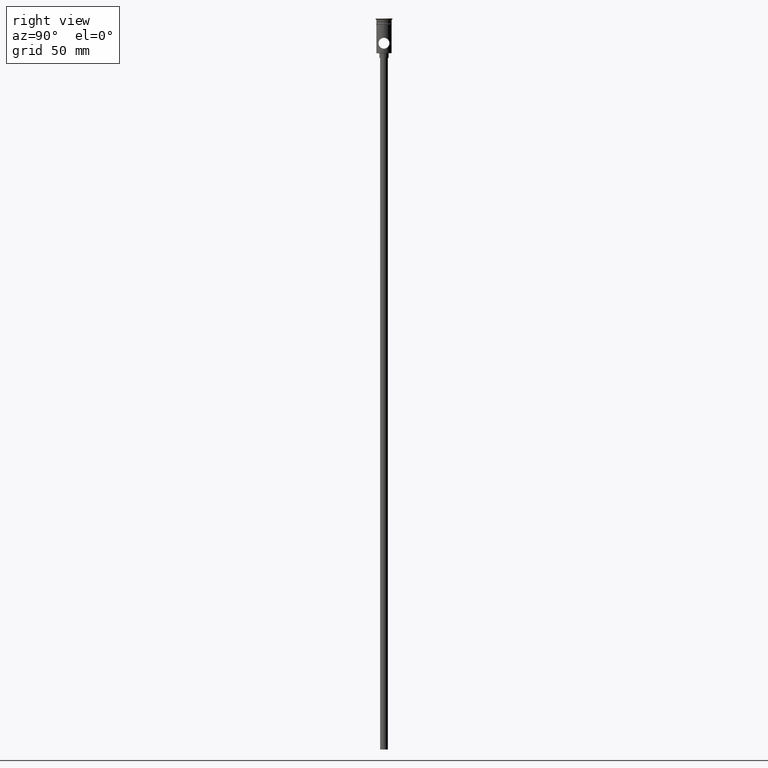
[diagram: clean part render]
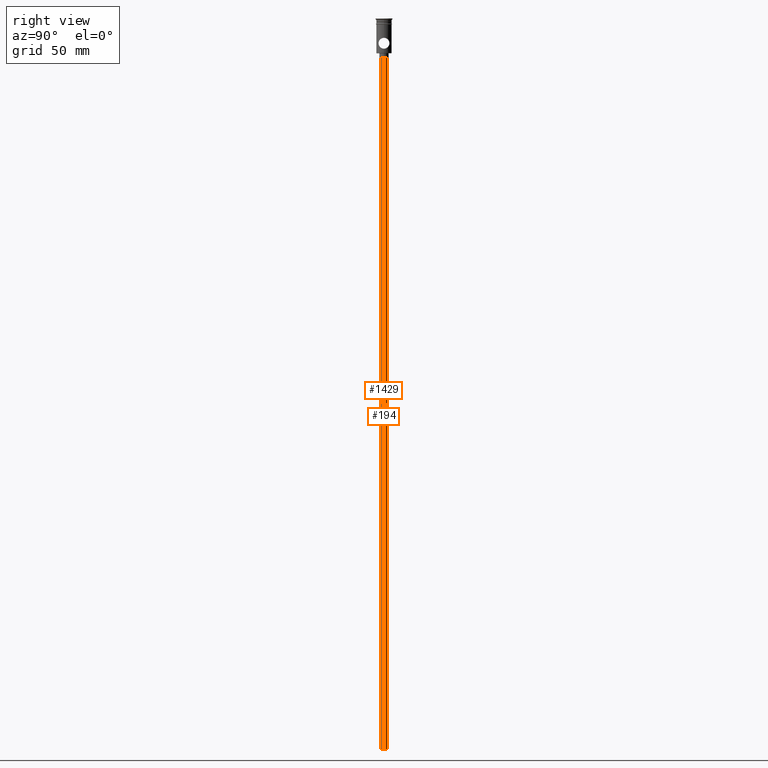
[diagram: same view with one multi-face feature highlighted, each face labeled with its STEP entity id]
A machine part, right view. The highlighted faces form ONE feature: a constant-radius fillet chain: 2 tangent blend faces with common blend radius 2.5 mm. The faces share edges in the B-rep.
Their STEP definitions:
[1] entity #1429 (Cylinder):
#43 = DIRECTION ( 'NONE',  ( -0.000000000000000000, -0.000000000000000000, 1.000000000000000000 ) ) ;
#120 = CARTESIAN_POINT ( 'NONE',  ( 0.000000000000000000, 0.000000000000000000, -25.50000000000000000 ) ) ;
#166 = EDGE_LOOP ( 'NONE', ( #471, #990, #1132, #1093 ) ) ;
#199 = CIRCLE ( 'NONE', #1033, 2.500000000000000000 ) ;
#205 = CARTESIAN_POINT ( 'NONE',  ( 2.500000000000000000, 0.000000000000000000, -472.5000000000000568 ) ) ;
#277 = DIRECTION ( 'NONE',  ( 1.000000000000000000, 0.000000000000000000, 0.000000000000000000 ) ) ;
#300 = CARTESIAN_POINT ( 'NONE',  ( 2.500000000000000000, 0.000000000000000000, -472.5000000000000568 ) ) ;
#331 = DIRECTION ( 'NONE',  ( -1.000000000000000000, 0.000000000000000000, 0.000000000000000000 ) ) ;
#352 = CARTESIAN_POINT ( 'NONE',  ( -2.500000000000000000, 3.061616997868383141E-16, -25.50000000000000000 ) ) ;
#433 = CARTESIAN_POINT ( 'NONE',  ( 2.500000000000000000, 0.000000000000000000, -25.50000000000000000 ) ) ;
#436 = DIRECTION ( 'NONE',  ( -0.000000000000000000, -0.000000000000000000, 1.000000000000000000 ) ) ;
#471 = ORIENTED_EDGE ( 'NONE', *, *, #924, .F. ) ;
#472 = CARTESIAN_POINT ( 'NONE',  ( 0.000000000000000000, 0.000000000000000000, -472.5000000000000568 ) ) ;
#475 = VERTEX_POINT ( 'NONE', #433 ) ;
#477 = DIRECTION ( 'NONE',  ( -1.000000000000000000, 0.000000000000000000, 0.000000000000000000 ) ) ;
#593 = DIRECTION ( 'NONE',  ( 0.000000000000000000, 0.000000000000000000, -1.000000000000000000 ) ) ;
#616 = CARTESIAN_POINT ( 'NONE',  ( -2.500000000000000000, 3.061616997868383141E-16, -472.5000000000000568 ) ) ;
#620 = CARTESIAN_POINT ( 'NONE',  ( 0.000000000000000000, 0.000000000000000000, -472.5000000000000568 ) ) ;
#631 = CARTESIAN_POINT ( 'NONE',  ( -2.500000000000000000, 3.061616997868383141E-16, -472.5000000000000568 ) ) ;
#662 = DIRECTION ( 'NONE',  ( 0.000000000000000000, 0.000000000000000000, -1.000000000000000000 ) ) ;
#726 = EDGE_CURVE ( 'NONE', #475, #1070, #199, .T. ) ;
#736 = AXIS2_PLACEMENT_3D ( 'NONE', #620, #43, #277 ) ;
#744 = CYLINDRICAL_SURFACE ( 'NONE', #736, 2.500000000000000000 ) ;
#780 = CIRCLE ( 'NONE', #833, 2.500000000000000000 ) ;
#809 = EDGE_CURVE ( 'NONE', #1459, #475, #1233, .T. ) ;
#833 = AXIS2_PLACEMENT_3D ( 'NONE', #472, #593, #477 ) ;
#844 = FACE_OUTER_BOUND ( 'NONE', #166, .T. ) ;
#885 = EDGE_CURVE ( 'NONE', #1459, #1318, #780, .T. ) ;
#924 = EDGE_CURVE ( 'NONE', #1318, #1070, #1323, .T. ) ;
#990 = ORIENTED_EDGE ( 'NONE', *, *, #885, .F. ) ;
#1033 = AXIS2_PLACEMENT_3D ( 'NONE', #120, #662, #331 ) ;
#1070 = VERTEX_POINT ( 'NONE', #352 ) ;
#1081 = VECTOR ( 'NONE', #1194, 1000.000000000000000 ) ;
#1093 = ORIENTED_EDGE ( 'NONE', *, *, #726, .T. ) ;
#1132 = ORIENTED_EDGE ( 'NONE', *, *, #809, .T. ) ;
#1194 = DIRECTION ( 'NONE',  ( -0.000000000000000000, -0.000000000000000000, 1.000000000000000000 ) ) ;
#1233 = LINE ( 'NONE', #205, #1366 ) ;
#1318 = VERTEX_POINT ( 'NONE', #616 ) ;
#1323 = LINE ( 'NONE', #631, #1081 ) ;
#1366 = VECTOR ( 'NONE', #436, 1000.000000000000000 ) ;
#1429 = ADVANCED_FACE ( 'NONE', ( #844 ), #744, .T. ) ;
#1459 = VERTEX_POINT ( 'NONE', #300 ) ;
[2] entity #194 (Cylinder):
#85 = CIRCLE ( 'NONE', #202, 2.500000000000000000 ) ;
#187 = FACE_OUTER_BOUND ( 'NONE', #909, .T. ) ;
#194 = ADVANCED_FACE ( 'NONE', ( #187 ), #1363, .T. ) ;
#202 = AXIS2_PLACEMENT_3D ( 'NONE', #510, #1073, #673 ) ;
#205 = CARTESIAN_POINT ( 'NONE',  ( 2.500000000000000000, 0.000000000000000000, -472.5000000000000568 ) ) ;
#300 = CARTESIAN_POINT ( 'NONE',  ( 2.500000000000000000, 0.000000000000000000, -472.5000000000000568 ) ) ;
#352 = CARTESIAN_POINT ( 'NONE',  ( -2.500000000000000000, 3.061616997868383141E-16, -25.50000000000000000 ) ) ;
#401 = DIRECTION ( 'NONE',  ( -1.000000000000000000, 0.000000000000000000, 0.000000000000000000 ) ) ;
#413 = AXIS2_PLACEMENT_3D ( 'NONE', #1322, #1013, #1029 ) ;
#415 = DIRECTION ( 'NONE',  ( 0.000000000000000000, 0.000000000000000000, -1.000000000000000000 ) ) ;
#433 = CARTESIAN_POINT ( 'NONE',  ( 2.500000000000000000, 0.000000000000000000, -25.50000000000000000 ) ) ;
#436 = DIRECTION ( 'NONE',  ( -0.000000000000000000, -0.000000000000000000, 1.000000000000000000 ) ) ;
#468 = CIRCLE ( 'NONE', #638, 2.500000000000000000 ) ;
#475 = VERTEX_POINT ( 'NONE', #433 ) ;
#478 = ORIENTED_EDGE ( 'NONE', *, *, #924, .T. ) ;
#510 = CARTESIAN_POINT ( 'NONE',  ( 0.000000000000000000, 0.000000000000000000, -472.5000000000000568 ) ) ;
#616 = CARTESIAN_POINT ( 'NONE',  ( -2.500000000000000000, 3.061616997868383141E-16, -472.5000000000000568 ) ) ;
#631 = CARTESIAN_POINT ( 'NONE',  ( -2.500000000000000000, 3.061616997868383141E-16, -472.5000000000000568 ) ) ;
#634 = EDGE_CURVE ( 'NONE', #1070, #475, #468, .T. ) ;
#638 = AXIS2_PLACEMENT_3D ( 'NONE', #1416, #415, #401 ) ;
#673 = DIRECTION ( 'NONE',  ( -1.000000000000000000, 0.000000000000000000, 0.000000000000000000 ) ) ;
#809 = EDGE_CURVE ( 'NONE', #1459, #475, #1233, .T. ) ;
#909 = EDGE_LOOP ( 'NONE', ( #1099, #478, #1457, #1139 ) ) ;
#924 = EDGE_CURVE ( 'NONE', #1318, #1070, #1323, .T. ) ;
#1013 = DIRECTION ( 'NONE',  ( -0.000000000000000000, -0.000000000000000000, 1.000000000000000000 ) ) ;
#1029 = DIRECTION ( 'NONE',  ( 1.000000000000000000, 0.000000000000000000, 0.000000000000000000 ) ) ;
#1070 = VERTEX_POINT ( 'NONE', #352 ) ;
#1073 = DIRECTION ( 'NONE',  ( 0.000000000000000000, 0.000000000000000000, -1.000000000000000000 ) ) ;
#1081 = VECTOR ( 'NONE', #1194, 1000.000000000000000 ) ;
#1099 = ORIENTED_EDGE ( 'NONE', *, *, #1444, .F. ) ;
#1139 = ORIENTED_EDGE ( 'NONE', *, *, #809, .F. ) ;
#1194 = DIRECTION ( 'NONE',  ( -0.000000000000000000, -0.000000000000000000, 1.000000000000000000 ) ) ;
#1233 = LINE ( 'NONE', #205, #1366 ) ;
#1318 = VERTEX_POINT ( 'NONE', #616 ) ;
#1322 = CARTESIAN_POINT ( 'NONE',  ( 0.000000000000000000, 0.000000000000000000, -472.5000000000000568 ) ) ;
#1323 = LINE ( 'NONE', #631, #1081 ) ;
#1363 = CYLINDRICAL_SURFACE ( 'NONE', #413, 2.500000000000000000 ) ;
#1366 = VECTOR ( 'NONE', #436, 1000.000000000000000 ) ;
#1416 = CARTESIAN_POINT ( 'NONE',  ( 0.000000000000000000, 0.000000000000000000, -25.50000000000000000 ) ) ;
#1444 = EDGE_CURVE ( 'NONE', #1318, #1459, #85, .T. ) ;
#1457 = ORIENTED_EDGE ( 'NONE', *, *, #634, .T. ) ;
#1459 = VERTEX_POINT ( 'NONE', #300 ) ;